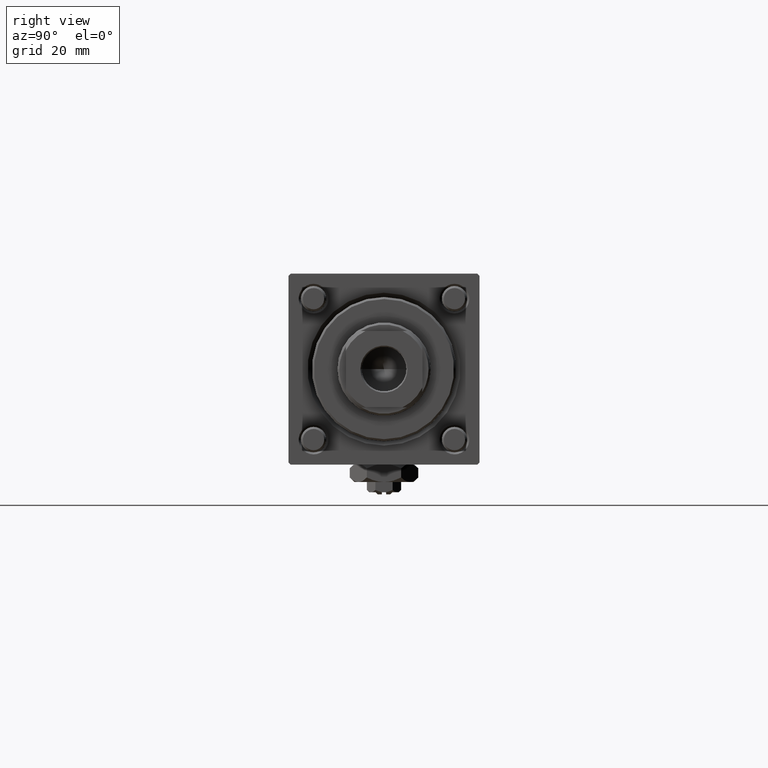
[diagram: clean part render]
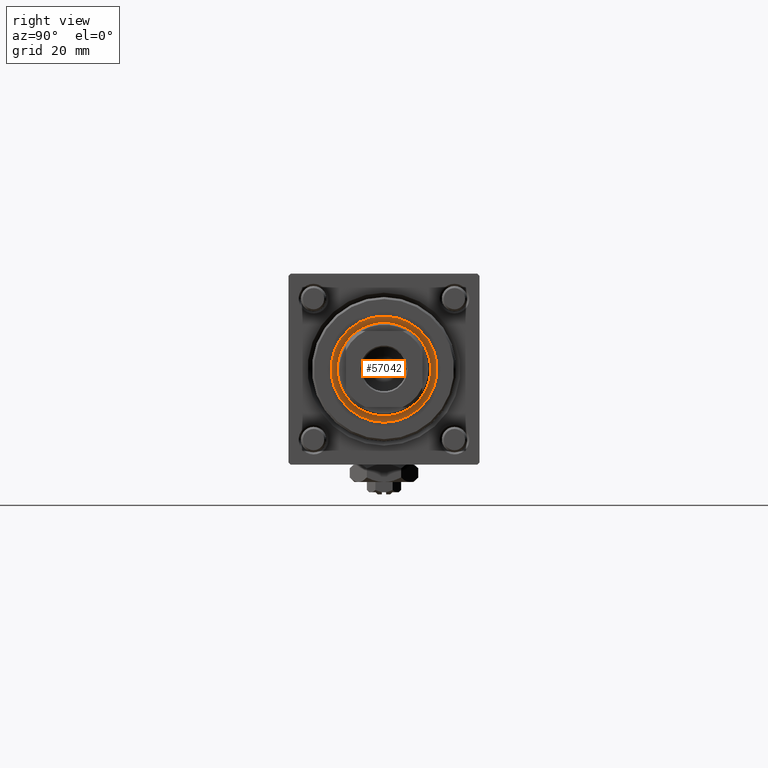
[diagram: same view with one face highlighted and labeled with its STEP entity id]
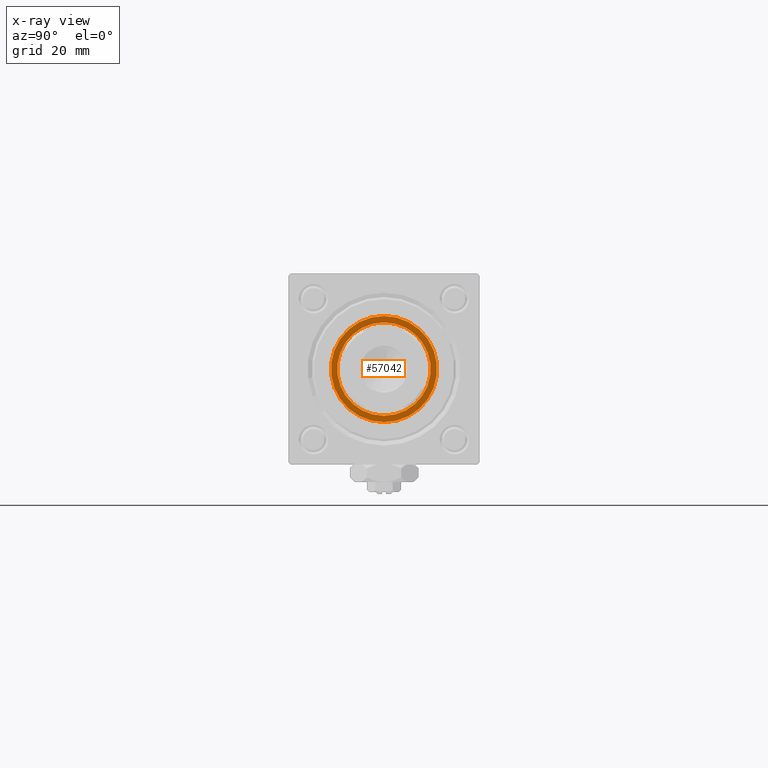
[diagram: x-ray of the same camera — body ghosted, the highlighted face saturated]
A machine part, right view. The second image highlights one B-rep face of the part: STEP entity #57042.
The next image is the same camera in x-ray: the body ghosted, the highlighted face saturated — about 0% of this face is hidden behind the body in this view.
In plain terms, the highlighted planar face has unit normal (1, 0, 0).
Its self-contained STEP definition (entity closure, byte-faithful):
#2219 = CIRCLE ( 'NONE', #57984, 11.00000000000000000 ) ;
#5123 = CARTESIAN_POINT ( 'NONE',  ( 12.50000000000000000, 0.000000000000000000, 40.20000000000000284 ) ) ;
#5292 = VERTEX_POINT ( 'NONE', #5123 ) ;
#5708 = ORIENTED_EDGE ( 'NONE', *, *, #26214, .T. ) ;
#7665 = EDGE_LOOP ( 'NONE', ( #5708, #31148 ) ) ;
#7855 = CARTESIAN_POINT ( 'NONE',  ( 0.000000000000000000, 0.000000000000000000, 40.20000000000000284 ) ) ;
#9753 = AXIS2_PLACEMENT_3D ( 'NONE', #43482, #12967, #12100 ) ;
#11711 = DIRECTION ( 'NONE',  ( 1.000000000000000000, 0.000000000000000000, 0.000000000000000000 ) ) ;
#12100 = DIRECTION ( 'NONE',  ( 1.000000000000000000, 0.000000000000000000, -0.000000000000000000 ) ) ;
#12967 = DIRECTION ( 'NONE',  ( 0.000000000000000000, 0.000000000000000000, 1.000000000000000000 ) ) ;
#13460 = DIRECTION ( 'NONE',  ( 1.000000000000000000, 0.000000000000000000, 0.000000000000000000 ) ) ;
#14680 = EDGE_CURVE ( 'NONE', #35247, #43993, #29603, .T. ) ;
#16140 = DIRECTION ( 'NONE',  ( -0.000000000000000000, -0.000000000000000000, -1.000000000000000000 ) ) ;
#16667 = CIRCLE ( 'NONE', #26119, 12.50000000000000000 ) ;
#16673 = DIRECTION ( 'NONE',  ( 1.000000000000000000, 0.000000000000000000, 0.000000000000000000 ) ) ;
#17305 = DIRECTION ( 'NONE',  ( 1.000000000000000000, 0.000000000000000000, 0.000000000000000000 ) ) ;
#18023 = CARTESIAN_POINT ( 'NONE',  ( -11.00000000000000000, 1.347111479062088405E-15, 40.20000000000000284 ) ) ;
#21269 = FACE_OUTER_BOUND ( 'NONE', #24616, .T. ) ;
#24616 = EDGE_LOOP ( 'NONE', ( #48367, #46877 ) ) ;
#26119 = AXIS2_PLACEMENT_3D ( 'NONE', #43974, #58476, #17305 ) ;
#26214 = EDGE_CURVE ( 'NONE', #43993, #35247, #2219, .T. ) ;
#29603 = CIRCLE ( 'NONE', #54207, 11.00000000000000000 ) ;
#29712 = DIRECTION ( 'NONE',  ( 0.000000000000000000, 0.000000000000000000, 1.000000000000000000 ) ) ;
#30869 = EDGE_CURVE ( 'NONE', #55095, #5292, #53233, .T. ) ;
#31148 = ORIENTED_EDGE ( 'NONE', *, *, #14680, .T. ) ;
#35247 = VERTEX_POINT ( 'NONE', #18023 ) ;
#35374 = CARTESIAN_POINT ( 'NONE',  ( 0.000000000000000000, 0.000000000000000000, 40.20000000000000284 ) ) ;
#41188 = EDGE_CURVE ( 'NONE', #5292, #55095, #16667, .T. ) ;
#43482 = CARTESIAN_POINT ( 'NONE',  ( 0.000000000000000000, 0.000000000000000000, 40.20000000000000284 ) ) ;
#43974 = CARTESIAN_POINT ( 'NONE',  ( 0.000000000000000000, 0.000000000000000000, 40.20000000000000284 ) ) ;
#43993 = VERTEX_POINT ( 'NONE', #44739 ) ;
#44650 = FACE_BOUND ( 'NONE', #7665, .T. ) ;
#44739 = CARTESIAN_POINT ( 'NONE',  ( 11.00000000000000000, 0.000000000000000000, 40.20000000000000284 ) ) ;
#44744 = CARTESIAN_POINT ( 'NONE',  ( -12.50000000000000000, 1.530808498934191521E-15, 40.20000000000000284 ) ) ;
#46877 = ORIENTED_EDGE ( 'NONE', *, *, #30869, .T. ) ;
#48089 = CARTESIAN_POINT ( 'NONE',  ( 0.000000000000000000, 0.000000000000000000, 40.20000000000000284 ) ) ;
#48367 = ORIENTED_EDGE ( 'NONE', *, *, #41188, .T. ) ;
#50419 = AXIS2_PLACEMENT_3D ( 'NONE', #48089, #29712, #16673 ) ;
#52383 = PLANE ( 'NONE',  #9753 ) ;
#53233 = CIRCLE ( 'NONE', #50419, 12.50000000000000000 ) ;
#54021 = DIRECTION ( 'NONE',  ( -0.000000000000000000, -0.000000000000000000, -1.000000000000000000 ) ) ;
#54207 = AXIS2_PLACEMENT_3D ( 'NONE', #7855, #16140, #11711 ) ;
#55095 = VERTEX_POINT ( 'NONE', #44744 ) ;
#57042 = ADVANCED_FACE ( 'NONE', ( #21269, #44650 ), #52383, .T. ) ;
#57984 = AXIS2_PLACEMENT_3D ( 'NONE', #35374, #54021, #13460 ) ;
#58476 = DIRECTION ( 'NONE',  ( 0.000000000000000000, 0.000000000000000000, 1.000000000000000000 ) ) ;